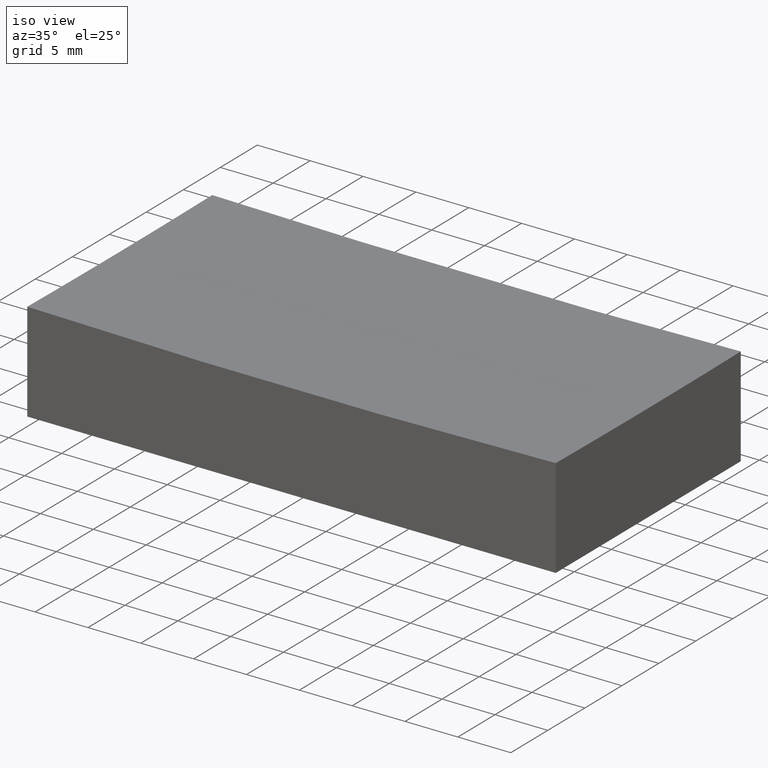
[diagram: clean part render]
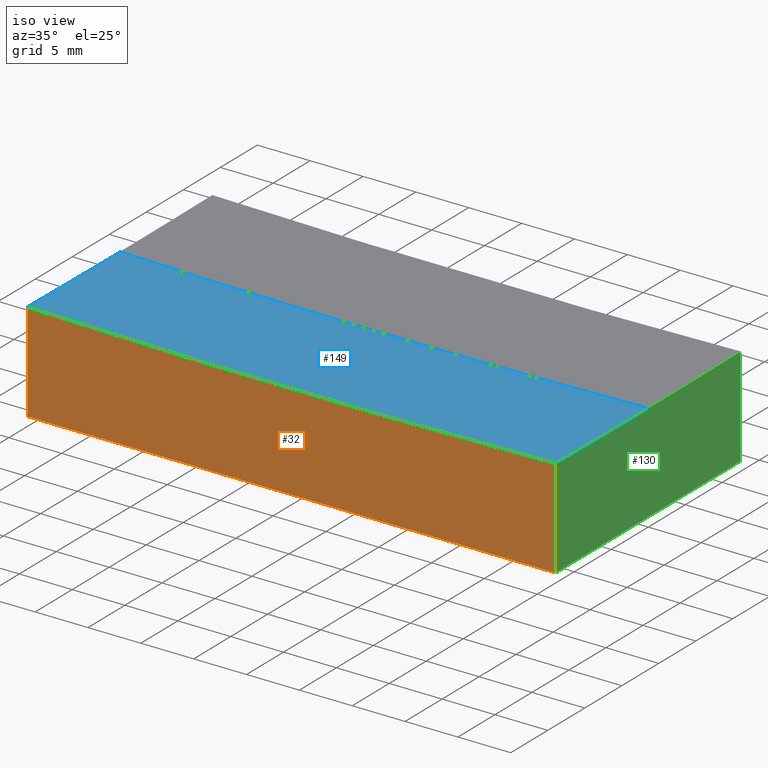
[diagram: same view with three faces highlighted in distinct colors, each labeled with its STEP entity id]
A machine part, iso view with three faces highlighted in distinct colors.
Their STEP definitions:

[orange] entity #32 — the highlighted planar face has unit normal (0, 1, 0).
#11 = CARTESIAN_POINT ( 'NONE',  ( -24.99999999999998934, -12.49999999999999645, 9.390701323762185027 ) ) ;
#13 = DIRECTION ( 'NONE',  ( -0.000000000000000000, -0.000000000000000000, -1.000000000000000000 ) ) ;
#20 = VECTOR ( 'NONE', #13, 1000.000000000000000 ) ;
#32 = ADVANCED_FACE ( 'NONE', ( #48 ), #86, .F. ) ;
#33 = VECTOR ( 'NONE', #131, 1000.000000000000000 ) ;
#39 = ORIENTED_EDGE ( 'NONE', *, *, #77, .T. ) ;
#41 = ORIENTED_EDGE ( 'NONE', *, *, #78, .T. ) ;
#44 = VERTEX_POINT ( 'NONE', #184 ) ;
#47 = AXIS2_PLACEMENT_3D ( 'NONE', #60, #99, #176 ) ;
#48 = FACE_OUTER_BOUND ( 'NONE', #85, .T. ) ;
#54 = DIRECTION ( 'NONE',  ( 1.000000000000000000, 0.000000000000000000, 0.000000000000000000 ) ) ;
#60 = CARTESIAN_POINT ( 'NONE',  ( 0.000000000000000000, -12.49999999999999645, 1008.999999999999886 ) ) ;
#63 = ORIENTED_EDGE ( 'NONE', *, *, #241, .F. ) ;
#72 = CARTESIAN_POINT ( 'NONE',  ( 24.99999999999999645, -12.50000000000000000, 15.00000000000000000 ) ) ;
#77 = EDGE_CURVE ( 'NONE', #122, #44, #95, .T. ) ;
#78 = EDGE_CURVE ( 'NONE', #44, #181, #136, .T. ) ;
#85 = EDGE_LOOP ( 'NONE', ( #63, #39, #41, #163 ) ) ;
#86 = PLANE ( 'NONE',  #116 ) ;
#95 = LINE ( 'NONE', #117, #33 ) ;
#99 = DIRECTION ( 'NONE',  ( -0.000000000000000000, -1.000000000000000000, -0.000000000000000000 ) ) ;
#109 = EDGE_CURVE ( 'NONE', #160, #181, #246, .T. ) ;
#115 = CARTESIAN_POINT ( 'NONE',  ( 24.99999999999999645, -12.50000000000000000, 0.000000000000000000 ) ) ;
#116 = AXIS2_PLACEMENT_3D ( 'NONE', #129, #144, #207 ) ;
#117 = CARTESIAN_POINT ( 'NONE',  ( -24.99999999999999645, -12.50000000000000000, 15.00000000000000000 ) ) ;
#122 = VERTEX_POINT ( 'NONE', #11 ) ;
#129 = CARTESIAN_POINT ( 'NONE',  ( -24.99999999999999645, -12.50000000000000000, 15.00000000000000000 ) ) ;
#131 = DIRECTION ( 'NONE',  ( -0.000000000000000000, -0.000000000000000000, -1.000000000000000000 ) ) ;
#136 = LINE ( 'NONE', #155, #203 ) ;
#144 = DIRECTION ( 'NONE',  ( 0.000000000000000000, 1.000000000000000000, 0.000000000000000000 ) ) ;
#155 = CARTESIAN_POINT ( 'NONE',  ( -24.99999999999999645, -12.50000000000000000, 0.000000000000000000 ) ) ;
#160 = VERTEX_POINT ( 'NONE', #186 ) ;
#163 = ORIENTED_EDGE ( 'NONE', *, *, #109, .F. ) ;
#176 = DIRECTION ( 'NONE',  ( 2.842170943040400428E-14, 0.000000000000000000, 1.000000000000000000 ) ) ;
#181 = VERTEX_POINT ( 'NONE', #115 ) ;
#184 = CARTESIAN_POINT ( 'NONE',  ( -24.99999999999999645, -12.50000000000000000, 0.000000000000000000 ) ) ;
#186 = CARTESIAN_POINT ( 'NONE',  ( 24.99999999999999645, -12.50000000000000000, 9.390701323762073116 ) ) ;
#203 = VECTOR ( 'NONE', #54, 1000.000000000000000 ) ;
#207 = DIRECTION ( 'NONE',  ( 0.000000000000000000, -0.000000000000000000, 1.000000000000000000 ) ) ;
#239 = CIRCLE ( 'NONE', #47, 999.9218719480036270 ) ;
#241 = EDGE_CURVE ( 'NONE', #122, #160, #239, .T. ) ;
#246 = LINE ( 'NONE', #72, #20 ) ;

[blue] entity #149 — the highlighted spherical surface has radius 1000 mm.
#3 = AXIS2_PLACEMENT_3D ( 'NONE', #17, #152, #212 ) ;
#9 = EDGE_CURVE ( 'NONE', #28, #202, #21, .T. ) ;
#11 = CARTESIAN_POINT ( 'NONE',  ( -24.99999999999998934, -12.49999999999999645, 9.390701323762185027 ) ) ;
#15 = AXIS2_PLACEMENT_3D ( 'NONE', #213, #244, #89 ) ;
#17 = CARTESIAN_POINT ( 'NONE',  ( -25.00000000000000000, -3.469446951953614189E-15, 1008.999999999999886 ) ) ;
#18 = EDGE_CURVE ( 'NONE', #160, #28, #162, .T. ) ;
#21 = CIRCLE ( 'NONE', #146, 1000.000000000000000 ) ;
#27 = ORIENTED_EDGE ( 'NONE', *, *, #100, .F. ) ;
#28 = VERTEX_POINT ( 'NONE', #224 ) ;
#29 = CARTESIAN_POINT ( 'NONE',  ( 25.00000000000000000, -6.938893903907228378E-15, 1008.999999999999886 ) ) ;
#42 = VERTEX_POINT ( 'NONE', #81 ) ;
#46 = DIRECTION ( 'NONE',  ( 0.000000000000000000, 1.000000000000000000, -0.000000000000000000 ) ) ;
#47 = AXIS2_PLACEMENT_3D ( 'NONE', #60, #99, #176 ) ;
#53 = CARTESIAN_POINT ( 'NONE',  ( 0.000000000000000000, 0.000000000000000000, 1008.999999999999886 ) ) ;
#60 = CARTESIAN_POINT ( 'NONE',  ( 0.000000000000000000, -12.49999999999999645, 1008.999999999999886 ) ) ;
#62 = CIRCLE ( 'NONE', #3, 999.6874511566102228 ) ;
#74 = DIRECTION ( 'NONE',  ( 1.000000000000000000, 0.000000000000000000, 0.000000000000000000 ) ) ;
#81 = CARTESIAN_POINT ( 'NONE',  ( -25.00000000000000000, -3.061616997868383043E-15, 9.312548843389723885 ) ) ;
#89 = DIRECTION ( 'NONE',  ( 1.000000000000000000, 1.224646799147353207E-16, 0.000000000000000000 ) ) ;
#99 = DIRECTION ( 'NONE',  ( -0.000000000000000000, -1.000000000000000000, -0.000000000000000000 ) ) ;
#100 = EDGE_CURVE ( 'NONE', #42, #202, #104, .T. ) ;
#102 = EDGE_LOOP ( 'NONE', ( #27, #125, #235, #237, #145 ) ) ;
#104 = CIRCLE ( 'NONE', #15, 999.9999999999998863 ) ;
#105 = DIRECTION ( 'NONE',  ( 1.000000000000000000, -2.775557561562891351E-16, -0.000000000000000000 ) ) ;
#112 = DIRECTION ( 'NONE',  ( 0.000000000000000000, -1.000000000000000000, -0.000000000000000000 ) ) ;
#122 = VERTEX_POINT ( 'NONE', #11 ) ;
#125 = ORIENTED_EDGE ( 'NONE', *, *, #158, .T. ) ;
#128 = DIRECTION ( 'NONE',  ( 0.000000000000000000, 0.000000000000000000, 1.000000000000000000 ) ) ;
#134 = SPHERICAL_SURFACE ( 'NONE', #139, 999.9999999999998863 ) ;
#139 = AXIS2_PLACEMENT_3D ( 'NONE', #53, #112, #74 ) ;
#142 = DIRECTION ( 'NONE',  ( -2.776425330088568458E-16, -1.000000000000000000, 0.000000000000000000 ) ) ;
#145 = ORIENTED_EDGE ( 'NONE', *, *, #9, .T. ) ;
#146 = AXIS2_PLACEMENT_3D ( 'NONE', #183, #46, #128 ) ;
#149 = ADVANCED_FACE ( 'NONE', ( #191 ), #134, .F. ) ;
#152 = DIRECTION ( 'NONE',  ( -1.000000000000000000, -1.387778780781445676E-16, 0.000000000000000000 ) ) ;
#158 = EDGE_CURVE ( 'NONE', #42, #122, #62, .T. ) ;
#160 = VERTEX_POINT ( 'NONE', #186 ) ;
#162 = CIRCLE ( 'NONE', #169, 999.6874511566102228 ) ;
#169 = AXIS2_PLACEMENT_3D ( 'NONE', #29, #105, #142 ) ;
#176 = DIRECTION ( 'NONE',  ( 2.842170943040400428E-14, 0.000000000000000000, 1.000000000000000000 ) ) ;
#183 = CARTESIAN_POINT ( 'NONE',  ( 0.000000000000000000, 0.000000000000000000, 1008.999999999999886 ) ) ;
#186 = CARTESIAN_POINT ( 'NONE',  ( 24.99999999999999645, -12.50000000000000000, 9.390701323762073116 ) ) ;
#191 = FACE_OUTER_BOUND ( 'NONE', #102, .T. ) ;
#202 = VERTEX_POINT ( 'NONE', #215 ) ;
#212 = DIRECTION ( 'NONE',  ( -1.388212665044284229E-16, 1.000000000000000000, 0.000000000000000000 ) ) ;
#213 = CARTESIAN_POINT ( 'NONE',  ( 0.000000000000000000, 0.000000000000000000, 1008.999999999999886 ) ) ;
#215 = CARTESIAN_POINT ( 'NONE',  ( 6.119331653823657559E-14, 0.000000000000000000, 9.000000000000007105 ) ) ;
#224 = CARTESIAN_POINT ( 'NONE',  ( 25.00000000000000000, -3.851859888774471706E-31, 9.312548843389723885 ) ) ;
#235 = ORIENTED_EDGE ( 'NONE', *, *, #241, .T. ) ;
#237 = ORIENTED_EDGE ( 'NONE', *, *, #18, .T. ) ;
#239 = CIRCLE ( 'NONE', #47, 999.9218719480036270 ) ;
#241 = EDGE_CURVE ( 'NONE', #122, #160, #239, .T. ) ;
#244 = DIRECTION ( 'NONE',  ( 1.224646799147353207E-16, -1.000000000000000000, -4.778990533065456234E-36 ) ) ;

[green] entity #130 — the highlighted planar face has unit normal (-1, 0, 0).
#4 = EDGE_LOOP ( 'NONE', ( #71, #70, #182, #217, #223 ) ) ;
#7 = LINE ( 'NONE', #101, #97 ) ;
#13 = DIRECTION ( 'NONE',  ( -0.000000000000000000, -0.000000000000000000, -1.000000000000000000 ) ) ;
#18 = EDGE_CURVE ( 'NONE', #160, #28, #162, .T. ) ;
#20 = VECTOR ( 'NONE', #13, 1000.000000000000000 ) ;
#23 = DIRECTION ( 'NONE',  ( 1.000000000000000000, -2.775557561562891351E-16, -0.000000000000000000 ) ) ;
#26 = EDGE_CURVE ( 'NONE', #181, #195, #7, .T. ) ;
#28 = VERTEX_POINT ( 'NONE', #224 ) ;
#29 = CARTESIAN_POINT ( 'NONE',  ( 25.00000000000000000, -6.938893903907228378E-15, 1008.999999999999886 ) ) ;
#34 = CARTESIAN_POINT ( 'NONE',  ( 25.00000000000000355, 12.50000000000000000, 9.390701323762185027 ) ) ;
#37 = DIRECTION ( 'NONE',  ( -0.000000000000000000, -0.000000000000000000, -1.000000000000000000 ) ) ;
#52 = AXIS2_PLACEMENT_3D ( 'NONE', #153, #92, #227 ) ;
#70 = ORIENTED_EDGE ( 'NONE', *, *, #109, .T. ) ;
#71 = ORIENTED_EDGE ( 'NONE', *, *, #18, .F. ) ;
#72 = CARTESIAN_POINT ( 'NONE',  ( 24.99999999999999645, -12.50000000000000000, 15.00000000000000000 ) ) ;
#73 = EDGE_CURVE ( 'NONE', #28, #103, #75, .T. ) ;
#75 = CIRCLE ( 'NONE', #228, 999.6874511566102228 ) ;
#92 = DIRECTION ( 'NONE',  ( -1.000000000000000000, 2.775557561562891351E-16, 0.000000000000000000 ) ) ;
#97 = VECTOR ( 'NONE', #147, 1000.000000000000000 ) ;
#101 = CARTESIAN_POINT ( 'NONE',  ( 25.00000000000000355, 12.50000000000000000, 0.000000000000000000 ) ) ;
#103 = VERTEX_POINT ( 'NONE', #34 ) ;
#105 = DIRECTION ( 'NONE',  ( 1.000000000000000000, -2.775557561562891351E-16, -0.000000000000000000 ) ) ;
#108 = DIRECTION ( 'NONE',  ( -2.776425330088568458E-16, -1.000000000000000000, 0.000000000000000000 ) ) ;
#109 = EDGE_CURVE ( 'NONE', #160, #181, #246, .T. ) ;
#115 = CARTESIAN_POINT ( 'NONE',  ( 24.99999999999999645, -12.50000000000000000, 0.000000000000000000 ) ) ;
#130 = ADVANCED_FACE ( 'NONE', ( #167 ), #151, .F. ) ;
#138 = CARTESIAN_POINT ( 'NONE',  ( 25.00000000000000355, 12.50000000000000000, 15.00000000000000000 ) ) ;
#142 = DIRECTION ( 'NONE',  ( -2.776425330088568458E-16, -1.000000000000000000, 0.000000000000000000 ) ) ;
#147 = DIRECTION ( 'NONE',  ( 2.775557561562891351E-16, 1.000000000000000000, -0.000000000000000000 ) ) ;
#148 = VECTOR ( 'NONE', #37, 1000.000000000000000 ) ;
#151 = PLANE ( 'NONE',  #52 ) ;
#153 = CARTESIAN_POINT ( 'NONE',  ( 25.00000000000000355, 12.50000000000000000, 15.00000000000000000 ) ) ;
#159 = LINE ( 'NONE', #138, #148 ) ;
#160 = VERTEX_POINT ( 'NONE', #186 ) ;
#162 = CIRCLE ( 'NONE', #169, 999.6874511566102228 ) ;
#167 = FACE_OUTER_BOUND ( 'NONE', #4, .T. ) ;
#169 = AXIS2_PLACEMENT_3D ( 'NONE', #29, #105, #142 ) ;
#181 = VERTEX_POINT ( 'NONE', #115 ) ;
#182 = ORIENTED_EDGE ( 'NONE', *, *, #26, .T. ) ;
#186 = CARTESIAN_POINT ( 'NONE',  ( 24.99999999999999645, -12.50000000000000000, 9.390701323762073116 ) ) ;
#195 = VERTEX_POINT ( 'NONE', #250 ) ;
#217 = ORIENTED_EDGE ( 'NONE', *, *, #218, .F. ) ;
#218 = EDGE_CURVE ( 'NONE', #103, #195, #159, .T. ) ;
#223 = ORIENTED_EDGE ( 'NONE', *, *, #73, .F. ) ;
#224 = CARTESIAN_POINT ( 'NONE',  ( 25.00000000000000000, -3.851859888774471706E-31, 9.312548843389723885 ) ) ;
#227 = DIRECTION ( 'NONE',  ( -2.775557561562891351E-16, -1.000000000000000000, 0.000000000000000000 ) ) ;
#228 = AXIS2_PLACEMENT_3D ( 'NONE', #240, #23, #108 ) ;
#240 = CARTESIAN_POINT ( 'NONE',  ( 25.00000000000000000, -6.938893903907228378E-15, 1008.999999999999886 ) ) ;
#246 = LINE ( 'NONE', #72, #20 ) ;
#250 = CARTESIAN_POINT ( 'NONE',  ( 25.00000000000000355, 12.50000000000000000, 0.000000000000000000 ) ) ;